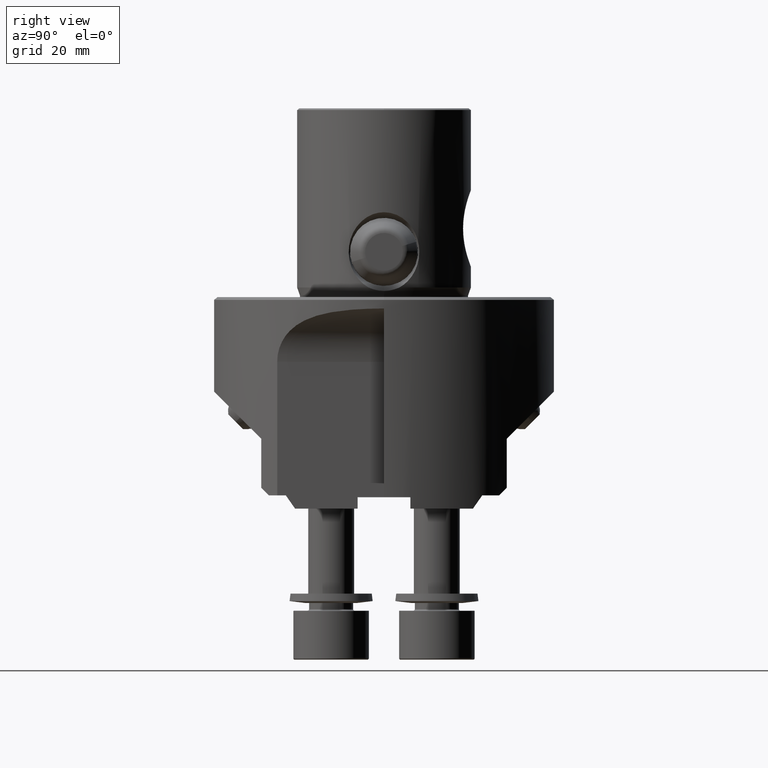
[diagram: clean part render]
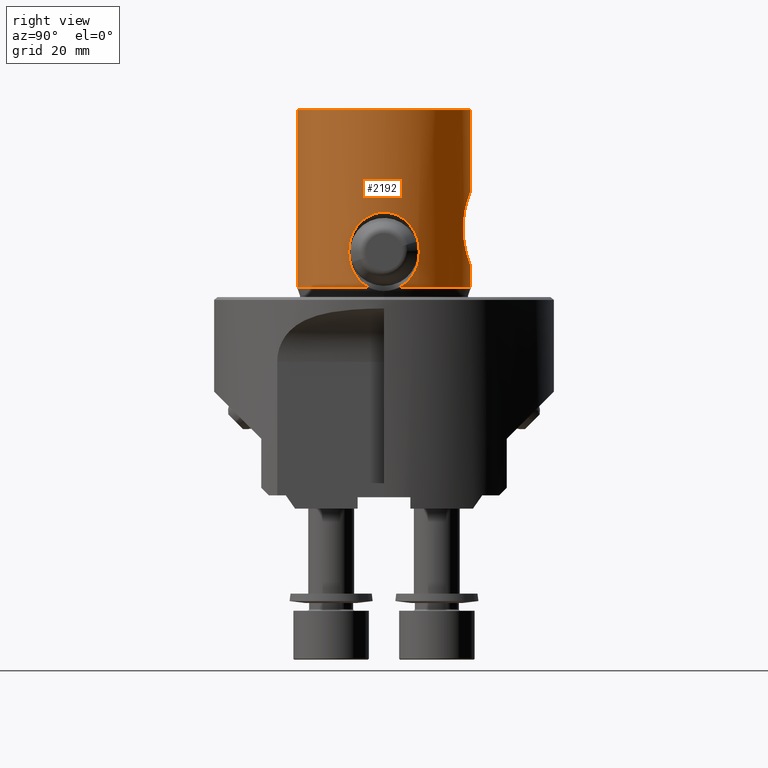
[diagram: same view with one face highlighted and labeled with its STEP entity id]
A machine part, right view. The second image highlights one B-rep face of the part: STEP entity #2192.
In plain terms, the highlighted cylindrical surface (partial cylindrical patch) has radius 23 mm, axis along (-0, -0, 1).
Its self-contained STEP definition (entity closure, byte-faithful):
#2176=VERTEX_POINT('NONE',#6275);
#2192=ADVANCED_FACE('NONE',(#6292),#6293,.T.);
#2394=EDGE_CURVE('NONE',#3856,#4982,#6517,.T.);
#3144=EDGE_CURVE('NONE',#3522,#4718,#7363,.T.);
#3232=VERTEX_POINT('NONE',#7460);
#3308=EDGE_CURVE('NONE',#2176,#4718,#7548,.T.);
#3522=VERTEX_POINT('NONE',#7791);
#3856=VERTEX_POINT('NONE',#8167);
#3990=VERTEX_POINT('NONE',#8320);
#4306=VERTEX_POINT('NONE',#8676);
#4376=EDGE_CURVE('NONE',#3522,#3232,#8758,.T.);
#4400=EDGE_CURVE('NONE',#4306,#4620,#8785,.T.);
#4486=VERTEX_POINT('NONE',#8880);
#4562=EDGE_CURVE('NONE',#3232,#6110,#8965,.T.);
#4620=VERTEX_POINT('NONE',#9031);
#4718=VERTEX_POINT('NONE',#9143);
#4824=EDGE_CURVE('NONE',#3990,#3856,#9264,.T.);
#4928=EDGE_CURVE('NONE',#4486,#3990,#9380,.T.);
#4982=VERTEX_POINT('NONE',#9442);
#5000=EDGE_CURVE('NONE',#4982,#4620,#9462,.T.);
#5106=EDGE_CURVE('NONE',#4486,#2176,#9580,.T.);
#5358=EDGE_CURVE('NONE',#6110,#4306,#9859,.T.);
#6110=VERTEX_POINT('NONE',#10704);
#6275=CARTESIAN_POINT('',(23.0,-5.34839664628324E-014,22.4933411425215));
#6292=FACE_OUTER_BOUND('',#10962,.T.);
#6293=CYLINDRICAL_SURFACE('',#10963,23.0);
#6517=CIRCLE('',#11277,23.0);
#7363=CIRCLE('',#12434,23.0);
#7460=CARTESIAN_POINT('',(-6.16297582203915E-030,23.0,8.11719700727359));
#7548=B_SPLINE_CURVE_WITH_KNOTS('',3,(#12710,#12711,#12712,#12713,#12714,#12715,#12716,#12717,#12718,#12719,#12720,#12721,#12722,#12723,#12724,#12725,#12726,#12727,#12728,#12729,#12730,#12731,#12732,#12733,#12734,#12735,#12736,#12737,#12738,#12739,#12740,#12741,#12742,#12743,#12744,#12745,#12746,#12747,#12748,#12749,#12750,#12751,#12752,#12753,#12754,#12755),.UNSPECIFIED.,.F.,.F.,(4,2,2,2,2,2,2,2,2,2,2,2,2,2,2,2,2,2,2,2,2,2,4),(0.00748500190922421,0.00917586443026994,0.0100212956907928,0.0108667269513157,0.0117121582118385,0.0125575894723614,0.0142484519934071,0.01509388325393,0.0159393145144528,0.0176301770354985,0.0184756082960214,0.0193210395565442,0.0210119020775899,0.0227027645986356,0.0243936271196813,0.026084489640727,0.0277753521617727,0.0286207834222956,0.0294662146828184,0.0311570772038642,0.032002508464387,0.0328479397249099,0.0345388022459556),.UNSPECIFIED.);
#7791=CARTESIAN_POINT('',(0.0,23.0,2.55505673333497));
#8167=CARTESIAN_POINT('',(-2.81659461379147E-015,-23.0,49.5425));
#8320=CARTESIAN_POINT('',(-2.81659461379147E-015,-23.0,2.55505673333497));
#8676=CARTESIAN_POINT('',(-5.04547861914669E-020,23.0,28.2828029927265));
#8758=LINE('',#14545,#14546);
#8785=LINE('',#14584,#14585);
#8880=CARTESIAN_POINT('',(22.6373045189776,-4.06846950524098,2.55505673333497));
#8965=B_SPLINE_CURVE_WITH_KNOTS('',3,(#14832,#14833,#14834,#14835,#14836,#14837,#14838,#14839,#14840,#14841,#14842,#14843,#14844,#14845,#14846,#14847,#14848,#14849,#14850,#14851),.UNSPECIFIED.,.F.,.F.,(4,2,2,2,2,2,2,2,2,4),(0.0388495945880372,0.0407851188832576,0.042720643178478,0.0446561674736984,0.0465916917689188,0.0485272160641392,0.0504627403593596,0.0514305025069698,0.0523982646545799,0.0543337889498003),.UNSPECIFIED.);
#9031=CARTESIAN_POINT('',(0.0,23.0,49.5425));
#9143=CARTESIAN_POINT('',(22.6373045189818,4.0684695052179,2.55505673332248));
#9264=LINE('',#15286,#15287);
#9380=CIRCLE('',#15457,23.0);
#9442=CARTESIAN_POINT('',(23.0,-5.19523931253457E-014,49.5425));
#9462=CIRCLE('',#15644,23.0);
#9580=B_SPLINE_CURVE_WITH_KNOTS('',3,(#15815,#15816,#15817,#15818,#15819,#15820,#15821,#15822,#15823,#15824,#15825,#15826,#15827,#15828,#15829,#15830,#15831,#15832,#15833,#15834,#15835,#15836,#15837,#15838,#15839,#15840,#15841,#15842,#15843,#15844,#15845,#15846,#15847,#15848,#15849,#15850,#15851,#15852,#15853,#15854),.UNSPECIFIED.,.F.,.F.,(4,2,2,2,2,2,2,2,2,2,2,2,2,2,2,2,2,2,2,4),(0.0430021618139394,0.0446914016352128,0.0463806414564863,0.047225261367123,0.0480698812777597,0.0497591210990332,0.0506037410096699,0.0514483609203067,0.0531376007415801,0.0548268405628536,0.056516080384127,0.0582053202054005,0.0590499401160372,0.0598945600266739,0.0615837998479474,0.0632730396692208,0.0649622794904943,0.0666515193117677,0.0683407591330412,0.0700299989543146),.UNSPECIFIED.);
#9859=B_SPLINE_CURVE_WITH_KNOTS('',3,(#16420,#16421,#16422,#16423,#16424,#16425,#16426,#16427,#16428,#16429,#16430,#16431,#16432,#16433,#16434,#16435,#16436,#16437,#16438,#16439,#16440,#16441,#16442,#16443,#16444),.UNSPECIFIED.,.F.,.F.,(4,2,1,2,2,2,2,2,2,2,2,2,4),(0.0543337889498003,0.0553019725322541,0.0562701561147078,0.0572383396971615,0.0582065232796152,0.0601428904445226,0.06207925760943,0.0640156247743374,0.0649838083567911,0.0659519919392448,0.0678883591041522,0.0688565426866059,0.0698247262690596),.UNSPECIFIED.);
#10704=CARTESIAN_POINT('',(9.52900098130771,20.9331827560511,18.2));
#10962=EDGE_LOOP('',(#17866,#17867,#17868,#17869,#17870,#17871,#17872,#17873,#17874,#17875,#17876));
#10963=AXIS2_PLACEMENT_3D('',#17877,#17878,#17879);
#11277=AXIS2_PLACEMENT_3D('',#18141,#18142,#18143);
#12434=AXIS2_PLACEMENT_3D('',#19215,#19216,#19217);
#12710=CARTESIAN_POINT('',(23.0,-5.34839664628324E-014,22.4933411425215));
#12711=CARTESIAN_POINT('',(23.0,0.565999977377681,22.4933411425215));
#12712=CARTESIAN_POINT('',(22.9791354320461,1.1277912512322,22.4359571146145));
#12713=CARTESIAN_POINT('',(22.9176829465657,1.96416723787976,22.2634301376607));
#12714=CARTESIAN_POINT('',(22.8921426315225,2.24129773909653,22.1913394652659));
#12715=CARTESIAN_POINT('',(22.8329026996277,2.78067691877035,22.0220901237621));
#12716=CARTESIAN_POINT('',(22.7990933606171,3.04458894867266,21.9246251473588));
#12717=CARTESIAN_POINT('',(22.7240973095953,3.5614016056261,21.7050163441116));
#12718=CARTESIAN_POINT('',(22.6829087573879,3.81430093651092,21.5828699430192));
#12719=CARTESIAN_POINT('',(22.5940860434107,4.30935229393072,21.3142333015765));
#12720=CARTESIAN_POINT('',(22.5463533615958,4.55176833897567,21.1674003039022));
#12721=CARTESIAN_POINT('',(22.3978226610012,5.25015425648812,20.699504916609));
#12722=CARTESIAN_POINT('',(22.2909202532902,5.68228119573001,20.3489395392918));
#12723=CARTESIAN_POINT('',(22.1256754414904,6.28473130605446,19.7685277166673));
#12724=CARTESIAN_POINT('',(22.069555634414,6.47856753151607,19.5650753687426));
#12725=CARTESIAN_POINT('',(21.9579225067755,6.84739091533038,19.1439637769294));
#12726=CARTESIAN_POINT('',(21.9025393580194,7.02204353910024,18.9268550112047));
#12727=CARTESIAN_POINT('',(21.7392810590407,7.51830846763203,18.256559350987));
#12728=CARTESIAN_POINT('',(21.6342840592715,7.81243392352172,17.78454234629));
#12729=CARTESIAN_POINT('',(21.4888168342097,8.20060020409771,17.0387347350133));
#12730=CARTESIAN_POINT('',(21.4421707240546,8.32150188378731,16.7827435829143));
#12731=CARTESIAN_POINT('',(21.3551720390605,8.542289280018,16.2649812693367));
#12732=CARTESIAN_POINT('',(21.3147241074516,8.64245670415566,16.0028748400287));
#12733=CARTESIAN_POINT('',(21.2035766026692,8.91327245711015,15.2070374544984));
#12734=CARTESIAN_POINT('',(21.1430734193509,9.05443370703647,14.6638443867501));
#12735=CARTESIAN_POINT('',(21.0546870192834,9.25810336360531,13.5515902559185));
#12736=CARTESIAN_POINT('',(21.02706881624,9.3200243336349,12.9796104561335));
#12737=CARTESIAN_POINT('',(21.0093384850774,9.35992377115786,11.8486395652087));
#12738=CARTESIAN_POINT('',(21.0186799838245,9.33914371802786,11.2851023889663));
#12739=CARTESIAN_POINT('',(21.0728806802628,9.21619300382815,10.1619061802301));
#12740=CARTESIAN_POINT('',(21.1184027952663,9.11246877582373,9.59754458368387));
#12741=CARTESIAN_POINT('',(21.2392963765509,8.82702176515412,8.50563077632052));
#12742=CARTESIAN_POINT('',(21.3144173564357,8.64588905184712,7.97610876028101));
#12743=CARTESIAN_POINT('',(21.4442096391105,8.31623828056731,7.20587950099449));
#12744=CARTESIAN_POINT('',(21.4903274079335,8.19664553791657,6.95316442284336));
#12745=CARTESIAN_POINT('',(21.5874513788635,7.93732405408956,6.45593586353948));
#12746=CARTESIAN_POINT('',(21.6386300545951,7.79707634573506,6.21074066474118));
#12747=CARTESIAN_POINT('',(21.7954590335686,7.35233338739667,5.49993546324731));
#12748=CARTESIAN_POINT('',(21.9050553003941,7.02237295484672,5.05515838358875));
#12749=CARTESIAN_POINT('',(22.070488922491,6.47532324519582,4.43156130663206));
#12750=CARTESIAN_POINT('',(22.1258102924314,6.28423930874042,4.23099883823566));
#12751=CARTESIAN_POINT('',(22.2356982622749,5.88361008015002,3.84502395869863));
#12752=CARTESIAN_POINT('',(22.2904892417621,5.67314662564895,3.65887717544754));
#12753=CARTESIAN_POINT('',(22.4503840365264,5.01819386885198,3.12980333124743));
#12754=CARTESIAN_POINT('',(22.5496009542289,4.55645947298472,2.82039517240867));
#12755=CARTESIAN_POINT('',(22.6373045189818,4.0684695052179,2.55505673332248));
#14545=CARTESIAN_POINT('',(0.0,23.0,52.3300323435718));
#14546=VECTOR('',#21033,1000.0);
#14584=CARTESIAN_POINT('',(0.0,23.0,52.3300323435718));
#14585=VECTOR('',#21073,1000.0);
#14832=CARTESIAN_POINT('',(-6.16297582203915E-030,23.0,8.11719700727359));
#14833=CARTESIAN_POINT('',(0.655604581470858,23.0,8.11719700727358));
#14834=CARTESIAN_POINT('',(1.29882870787173,22.9720084984516,8.18796602116721));
#14835=CARTESIAN_POINT('',(2.55948797024496,22.8658949484925,8.46323117228609));
#14836=CARTESIAN_POINT('',(3.18213809389827,22.786481804715,8.67128078380653));
#14837=CARTESIAN_POINT('',(4.3489816067314,22.592833263439,9.20160408939339));
#14838=CARTESIAN_POINT('',(4.90074299406487,22.4781519288991,9.52493937566538));
#14839=CARTESIAN_POINT('',(5.93765481713632,22.2267598022088,10.2827259983727));
#14840=CARTESIAN_POINT('',(6.4090408390756,22.0935668588216,10.7067494118005));
#14841=CARTESIAN_POINT('',(7.26622758049261,21.8266680409687,11.6407127501607));
#14842=CARTESIAN_POINT('',(7.65456797289323,21.6917913381956,12.156135108336));
#14843=CARTESIAN_POINT('',(8.32089629496796,21.4450205679512,13.2400871134835));
#14844=CARTESIAN_POINT('',(8.60202262959067,21.3322995935066,13.8104248591636));
#14845=CARTESIAN_POINT('',(8.94632900368983,21.1891162433575,14.7100658611714));
#14846=CARTESIAN_POINT('',(9.04853933087065,21.1455189110352,15.0191397889389));
#14847=CARTESIAN_POINT('',(9.22299512719774,21.0700117447273,15.6421062173281));
#14848=CARTESIAN_POINT('',(9.29548553125508,21.0380131149852,15.9560442004687));
#14849=CARTESIAN_POINT('',(9.46984079538921,20.9603984614377,16.9051366353611));
#14850=CARTESIAN_POINT('',(9.52900098130771,20.9331827560511,17.5475123320777));
#14851=CARTESIAN_POINT('',(9.52900098130771,20.9331827560511,18.2));
#15286=CARTESIAN_POINT('',(-2.81659461379147E-015,-23.0,52.3300323435718));
#15287=VECTOR('',#21679,1000.0);
#15457=AXIS2_PLACEMENT_3D('',#21816,#21817,#21818);
#15644=AXIS2_PLACEMENT_3D('',#21918,#21919,#21920);
#15815=CARTESIAN_POINT('',(22.6373045189776,-4.06846950524098,2.55505673333497));
#15816=CARTESIAN_POINT('',(22.5488404871952,-4.56069077514516,2.82269589001681));
#15817=CARTESIAN_POINT('',(22.4486594994016,-5.02594882014036,3.13526946478052));
#15818=CARTESIAN_POINT('',(22.2349015013825,-5.90013814131174,3.84305545579969));
#15819=CARTESIAN_POINT('',(22.1237340572613,-6.29973729031695,4.23038222140887));
#15820=CARTESIAN_POINT('',(21.9574554110806,-6.84884855368143,4.85788227840839));
#15821=CARTESIAN_POINT('',(21.9020991602837,-7.02343955196119,5.07485806898575));
#15822=CARTESIAN_POINT('',(21.7926440643329,-7.35603938626267,5.52444173008429));
#15823=CARTESIAN_POINT('',(21.7384024334845,-7.51441678343951,5.75777630216285));
#15824=CARTESIAN_POINT('',(21.5816480168178,-7.95806940781702,6.47063250689118));
#15825=CARTESIAN_POINT('',(21.4843740082302,-8.21444797918642,6.96565563514823));
#15826=CARTESIAN_POINT('',(21.3548195484736,-8.5431582324219,7.73733553373044));
#15827=CARTESIAN_POINT('',(21.3143598805753,-8.64336116229156,7.99944656119033));
#15828=CARTESIAN_POINT('',(21.2398318491652,-8.82491769478209,8.53365906649136));
#15829=CARTESIAN_POINT('',(21.2056607438823,-8.90650791872885,8.80687578198842));
#15830=CARTESIAN_POINT('',(21.1154819296084,-9.1192185215856,9.62946676341172));
#15831=CARTESIAN_POINT('',(21.0713803820315,-9.21961370537197,10.1839746253951));
#15832=CARTESIAN_POINT('',(21.0181699850325,-9.34028257392825,11.3050376325565));
#15833=CARTESIAN_POINT('',(21.009079827214,-9.36050883516708,11.872807035156));
#15834=CARTESIAN_POINT('',(21.0283114369178,-9.31722485247008,13.0159947382239));
#15835=CARTESIAN_POINT('',(21.0563226818675,-9.25439179134438,13.5782798007393));
#15836=CARTESIAN_POINT('',(21.1452699339623,-9.04931222416936,14.6851085139062));
#15837=CARTESIAN_POINT('',(21.2062121581701,-8.90707633874046,15.2296536790951));
#15838=CARTESIAN_POINT('',(21.31919951003,-8.63143053044529,16.0328986420649));
#15839=CARTESIAN_POINT('',(21.3603201540276,-8.52941393360724,16.2972183693934));
#15840=CARTESIAN_POINT('',(21.447490131887,-8.30778828425376,16.8125977169553));
#15841=CARTESIAN_POINT('',(21.4936766075829,-8.18784825718474,17.0646542436657));
#15842=CARTESIAN_POINT('',(21.6385408261703,-7.80061046908025,17.8042066623081));
#15843=CARTESIAN_POINT('',(21.7435318504549,-7.50613464595181,18.2752178076872));
#15844=CARTESIAN_POINT('',(21.9624817685837,-6.83905177780774,19.1717018274673));
#15845=CARTESIAN_POINT('',(22.0766223248551,-6.46493925963789,19.5970308832067));
#15846=CARTESIAN_POINT('',(22.2957535755861,-5.66322040908142,20.3650765102601));
#15847=CARTESIAN_POINT('',(22.4018192989592,-5.2327888610448,20.7123748192527));
#15848=CARTESIAN_POINT('',(22.597958339466,-4.30765203507162,21.3296755225576));
#15849=CARTESIAN_POINT('',(22.6887631923433,-3.80676130946998,21.6016416235712));
#15850=CARTESIAN_POINT('',(22.8378574599369,-2.7755492258492,22.0380416179131));
#15851=CARTESIAN_POINT('',(22.897049688558,-2.24283589171604,22.2054901258568));
#15852=CARTESIAN_POINT('',(22.9783259231483,-1.14093603985149,22.433696718224));
#15853=CARTESIAN_POINT('',(23.0,-0.565456794225427,22.4933411425215));
#15854=CARTESIAN_POINT('',(23.0,-5.34839664628324E-014,22.4933411425215));
#16420=CARTESIAN_POINT('',(9.52900098130771,20.9331827560511,18.2));
#16421=CARTESIAN_POINT('',(9.52900098130771,20.9331827560511,18.5263859045304));
#16422=CARTESIAN_POINT('',(9.5139023867913,20.9400744789908,18.8540356888846));
#16423=CARTESIAN_POINT('',(9.4546422701417,20.9668976568954,19.4995744130932));
#16424=CARTESIAN_POINT('',(9.36637134622374,21.0067339872945,20.1388971176697));
#16425=CARTESIAN_POINT('',(9.22094066610753,21.0709108012755,20.7660744582921));
#16426=CARTESIAN_POINT('',(9.04652855216596,21.1463791207391,21.3871762137127));
#16427=CARTESIAN_POINT('',(8.94416115746065,21.190035808163,21.6962824682939));
#16428=CARTESIAN_POINT('',(8.59776296835073,21.3340342501714,22.5993115512326));
#16429=CARTESIAN_POINT('',(8.31538216323733,21.4471664382711,23.1702292297115));
#16430=CARTESIAN_POINT('',(7.64817732503025,21.6940524650532,24.252890433867));
#16431=CARTESIAN_POINT('',(7.25938962939579,21.8290369555952,24.768313215076));
#16432=CARTESIAN_POINT('',(6.39340685079498,22.0981886370881,25.7086678725039));
#16433=CARTESIAN_POINT('',(5.92140973503256,22.230941301949,26.1301686406829));
#16434=CARTESIAN_POINT('',(5.15292171031027,22.4168878070223,26.6902390555206));
#16435=CARTESIAN_POINT('',(4.88660216176209,22.4766800773557,26.8648022926855));
#16436=CARTESIAN_POINT('',(4.33229646026398,22.5900693971383,27.1885467306253));
#16437=CARTESIAN_POINT('',(4.04474571178348,22.6434854764576,27.3371791088687));
#16438=CARTESIAN_POINT('',(3.1697163312135,22.7882098454836,27.7333117007933));
#16439=CARTESIAN_POINT('',(2.56340148871958,22.8654683890653,27.9356533061889));
#16440=CARTESIAN_POINT('',(1.61727978569051,22.945251666864,28.142629555498));
#16441=CARTESIAN_POINT('',(1.29340102594027,22.9658897579374,28.1955892919708));
#16442=CARTESIAN_POINT('',(0.645969207631119,22.9932099188093,28.2655330544339));
#16443=CARTESIAN_POINT('',(0.32274455784716,23.0,28.2828029927265));
#16444=CARTESIAN_POINT('',(-5.04547861914669E-020,23.0,28.2828029927265));
#17866=ORIENTED_EDGE('',*,*,#4824,.F.);
#17867=ORIENTED_EDGE('',*,*,#4928,.F.);
#17868=ORIENTED_EDGE('',*,*,#5106,.T.);
#17869=ORIENTED_EDGE('',*,*,#3308,.T.);
#17870=ORIENTED_EDGE('',*,*,#3144,.F.);
#17871=ORIENTED_EDGE('',*,*,#4376,.T.);
#17872=ORIENTED_EDGE('',*,*,#4562,.T.);
#17873=ORIENTED_EDGE('',*,*,#5358,.T.);
#17874=ORIENTED_EDGE('',*,*,#4400,.T.);
#17875=ORIENTED_EDGE('',*,*,#5000,.F.);
#17876=ORIENTED_EDGE('',*,*,#2394,.F.);
#17877=CARTESIAN_POINT('',(0.0,0.0,52.3300323435718));
#17878=DIRECTION('',(-0.0,-0.0,1.0));
#17879=DIRECTION('',(0.0,1.0,0.0));
#18141=CARTESIAN_POINT('',(0.0,0.0,49.5425));
#18142=DIRECTION('',(0.0,0.0,1.0));
#18143=DIRECTION('',(0.0,-1.0,0.0));
#19215=CARTESIAN_POINT('',(0.0,0.0,2.55505673333497));
#19216=DIRECTION('',(0.0,0.0,-1.0));
#19217=DIRECTION('',(0.0,1.0,0.0));
#21033=DIRECTION('',(0.0,0.0,1.0));
#21073=DIRECTION('',(0.0,0.0,1.0));
#21679=DIRECTION('',(0.0,0.0,1.0));
#21816=CARTESIAN_POINT('',(0.0,0.0,2.55505673333497));
#21817=DIRECTION('',(0.0,0.0,-1.0));
#21818=DIRECTION('',(0.0,1.0,0.0));
#21918=CARTESIAN_POINT('',(0.0,0.0,49.5425));
#21919=DIRECTION('',(0.0,0.0,1.0));
#21920=DIRECTION('',(0.0,-1.0,0.0));